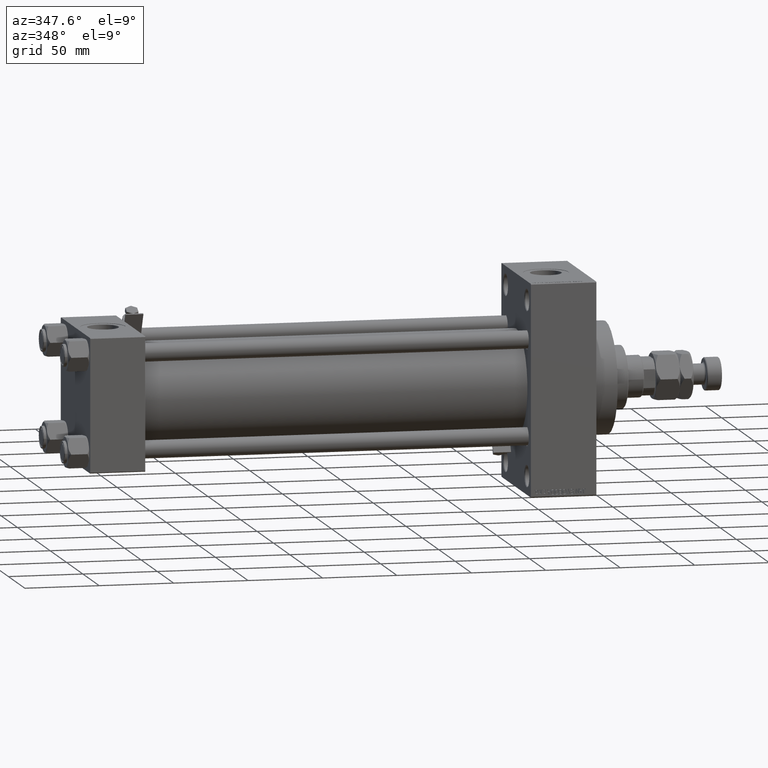
[diagram: clean part render]
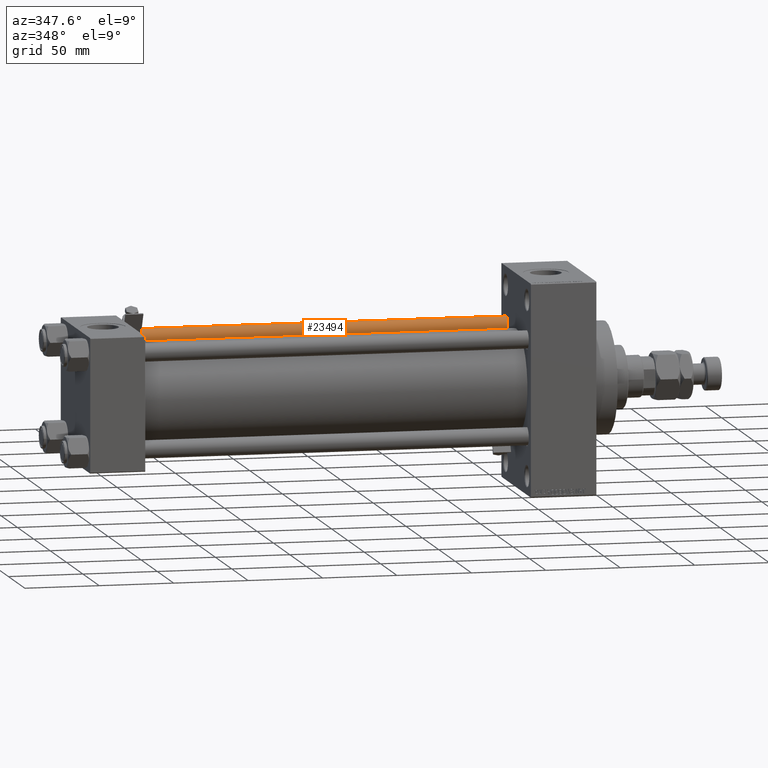
[diagram: same view with one face highlighted and labeled with its STEP entity id]
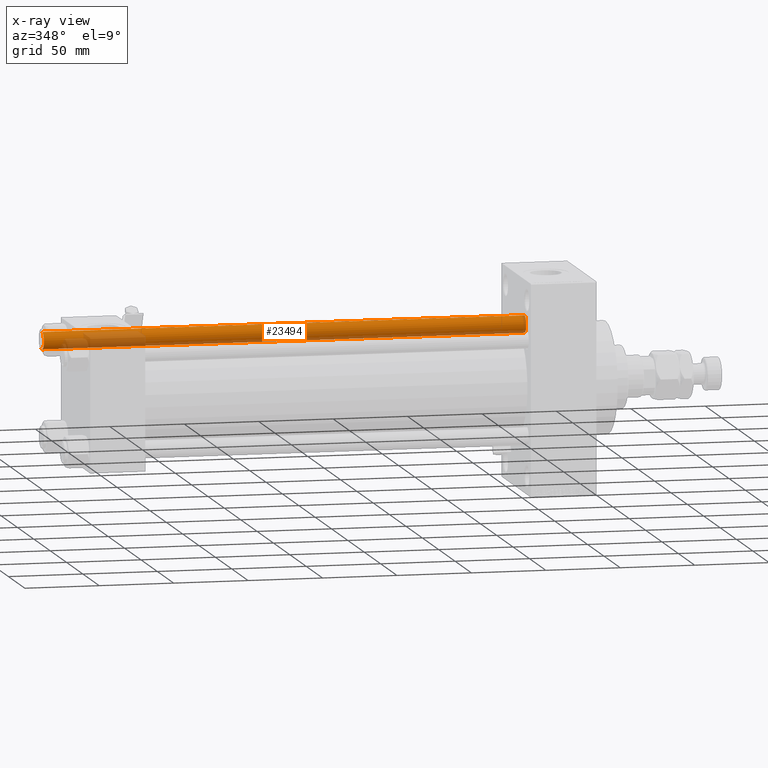
[diagram: x-ray of the same camera — body ghosted, the highlighted face saturated]
A machine part, auxiliary view. The second image highlights one B-rep face of the part: STEP entity #23494.
The next image is the same camera in x-ray: the body ghosted, the highlighted face saturated — about 25% of this face is hidden behind the body in this view.
In plain terms, the highlighted cylindrical surface (edge-blend (fillet) strip) has radius 6 mm, axis along (-1, -0, 0).
Its self-contained STEP definition (entity closure, byte-faithful):
#1219 = VECTOR ( 'NONE', #30474, 1000.000000000000000 ) ;
#2343 = EDGE_CURVE ( 'NONE', #25040, #4888, #31503, .T. ) ;
#2387 = CARTESIAN_POINT ( 'NONE',  ( 0.000000000000000000, 0.000000000000000000, 0.5000000000000004441 ) ) ;
#3226 = LINE ( 'NONE', #19269, #30013 ) ;
#4888 = VERTEX_POINT ( 'NONE', #34635 ) ;
#5598 = FACE_OUTER_BOUND ( 'NONE', #8408, .T. ) ;
#6074 = DIRECTION ( 'NONE',  ( -0.000000000000000000, -0.000000000000000000, 1.000000000000000000 ) ) ;
#6193 = CARTESIAN_POINT ( 'NONE',  ( 6.000000000000000888, 7.347880794884120722E-16, 324.5000000000001137 ) ) ;
#8408 = EDGE_LOOP ( 'NONE', ( #42810, #25197, #50356, #35669 ) ) ;
#13683 = AXIS2_PLACEMENT_3D ( 'NONE', #29537, #45053, #36908 ) ;
#14423 = CARTESIAN_POINT ( 'NONE',  ( -6.000000000000000888, 0.000000000000000000, 325.0000000000000000 ) ) ;
#15005 = CARTESIAN_POINT ( 'NONE',  ( 0.000000000000000000, 0.000000000000000000, 324.5000000000001137 ) ) ;
#15263 = DIRECTION ( 'NONE',  ( 0.000000000000000000, 0.000000000000000000, -1.000000000000000000 ) ) ;
#17908 = EDGE_CURVE ( 'NONE', #46544, #25040, #26929, .T. ) ;
#19269 = CARTESIAN_POINT ( 'NONE',  ( 6.000000000000000888, 7.347880794884120722E-16, 325.0000000000000000 ) ) ;
#20855 = CYLINDRICAL_SURFACE ( 'NONE', #13683, 6.000000000000000888 ) ;
#22846 = AXIS2_PLACEMENT_3D ( 'NONE', #2387, #6074, #26328 ) ;
#23494 = ADVANCED_FACE ( 'NONE', ( #5598 ), #20855, .T. ) ;
#24439 = CARTESIAN_POINT ( 'NONE',  ( -6.000000000000000888, 0.000000000000000000, 324.5000000000001137 ) ) ;
#25040 = VERTEX_POINT ( 'NONE', #24439 ) ;
#25197 = ORIENTED_EDGE ( 'NONE', *, *, #17908, .T. ) ;
#26085 = AXIS2_PLACEMENT_3D ( 'NONE', #15005, #15263, #35268 ) ;
#26328 = DIRECTION ( 'NONE',  ( 1.000000000000000000, 0.000000000000000000, 0.000000000000000000 ) ) ;
#26929 = CIRCLE ( 'NONE', #26085, 6.000000000000000888 ) ;
#28443 = DIRECTION ( 'NONE',  ( -0.000000000000000000, -0.000000000000000000, -1.000000000000000000 ) ) ;
#29537 = CARTESIAN_POINT ( 'NONE',  ( 0.000000000000000000, 0.000000000000000000, 325.0000000000000000 ) ) ;
#30013 = VECTOR ( 'NONE', #28443, 1000.000000000000000 ) ;
#30234 = EDGE_CURVE ( 'NONE', #4888, #37545, #50556, .T. ) ;
#30474 = DIRECTION ( 'NONE',  ( -0.000000000000000000, -0.000000000000000000, -1.000000000000000000 ) ) ;
#31503 = LINE ( 'NONE', #14423, #1219 ) ;
#34635 = CARTESIAN_POINT ( 'NONE',  ( -6.000000000000000888, 0.000000000000000000, 0.5000000000000004441 ) ) ;
#35268 = DIRECTION ( 'NONE',  ( 1.000000000000000000, 0.000000000000000000, 0.000000000000000000 ) ) ;
#35669 = ORIENTED_EDGE ( 'NONE', *, *, #30234, .T. ) ;
#36908 = DIRECTION ( 'NONE',  ( -1.000000000000000000, 0.000000000000000000, 0.000000000000000000 ) ) ;
#37545 = VERTEX_POINT ( 'NONE', #46634 ) ;
#42810 = ORIENTED_EDGE ( 'NONE', *, *, #44518, .F. ) ;
#44518 = EDGE_CURVE ( 'NONE', #46544, #37545, #3226, .T. ) ;
#45053 = DIRECTION ( 'NONE',  ( -0.000000000000000000, -0.000000000000000000, -1.000000000000000000 ) ) ;
#46544 = VERTEX_POINT ( 'NONE', #6193 ) ;
#46634 = CARTESIAN_POINT ( 'NONE',  ( 6.000000000000000888, 7.347880794884120722E-16, 0.5000000000000004441 ) ) ;
#50356 = ORIENTED_EDGE ( 'NONE', *, *, #2343, .T. ) ;
#50556 = CIRCLE ( 'NONE', #22846, 6.000000000000000888 ) ;